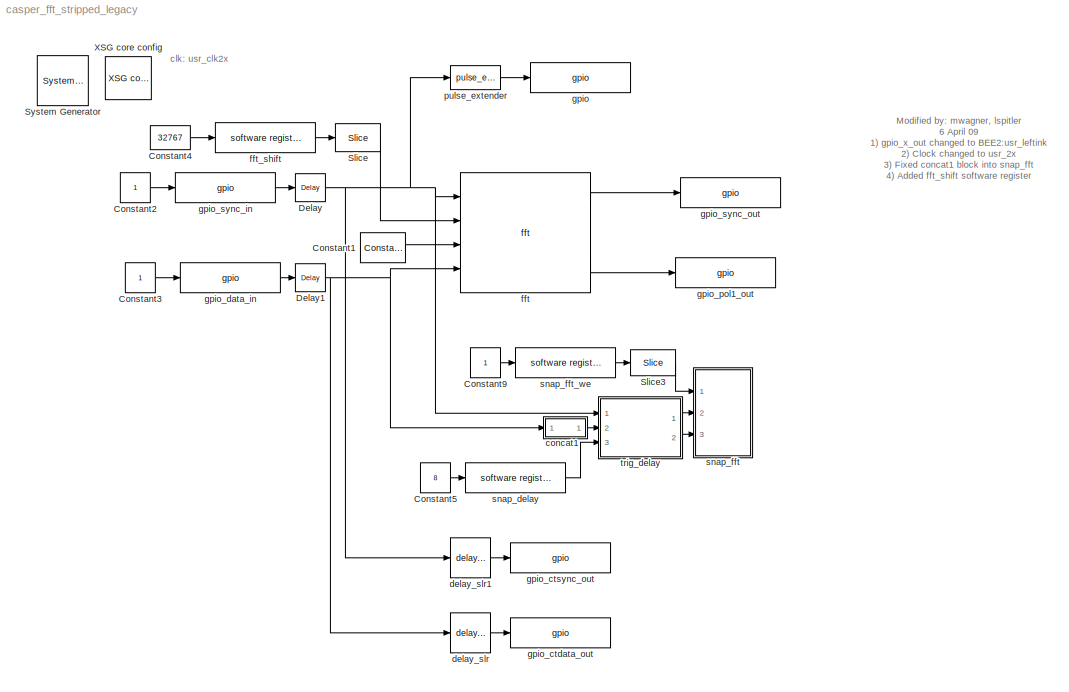
MODEL casper_fft_stripped_legacy
KIND model
BLOCK [Reference]  System Generator  REF=xbsIndex_r3/ System Generator
  AttributesFormatString = System\\nGenerator
  Ports = []
  ShowPortLabels = on
  SourceBlock = xbsIndex_r3/ System Generator
  SourceType = Xilinx System Generator
  Tag = genX
  UserData = DataTag0
  UserDataPersistent = on
  core_generation = According to Block Masks
  dbl_ovrd = According to Block Masks
  deprecated_control = off
  directory = ./casper_fft_stripped_legacy/sysgen
  eval_field = 0
  incr_netlist = off
  package = ff1704
  part = xc2vp70
  run_coregen = off
  simulink_period = 1
  speed = -7
  synthesis_tool = XST
  sysclk_period = 4.878
  testbench = off
  trim_vbits = Everywhere in SubSystem
  xilinxfamily = Virtex2P
BLOCK [Reference] Constant1  REF=xbsIndex_r3/Constant
  Ports = [0, 1]
  SourceBlock = xbsIndex_r3/Constant
  SourceType = Xilinx Constant Block
  arith_type = Unsigned
  bin_pt = 0
  carry = CIN
  const = 0
  dbl_ovrd = off
  equ = P=C
  explicit_period = on
  inp1 = P
  inp2 = PCIN>>17
  iostate = 0
  n_bits = 36
  opr = +
  opselect = C
  period = 1
BLOCK [Constant] Constant2
BLOCK [Constant] Constant3
BLOCK [Constant] Constant4
  Value = 32767
BLOCK [Constant] Constant5
  Value = 8
BLOCK [Constant] Constant9
BLOCK [Reference] Delay  REF=xbsIndex_r3/Delay
  Ports = [1, 1]
  SourceBlock = xbsIndex_r3/Delay
  SourceType = Xilinx Delay Block
  accept_only_valid = off
  dbl_ovrd = off
  en = off
  explicit_period = off
  init_zero = on
  latency = 1
  period = 1
  reg_retiming = on
  show_param = off
  xl_area = [0, 0, 0, 0, 0, 0, 0]
  xl_use_area = off
BLOCK [Reference] Delay1  REF=xbsIndex_r3/Delay
  Ports = [1, 1]
  SourceBlock = xbsIndex_r3/Delay
  SourceType = Xilinx Delay Block
  accept_only_valid = off
  dbl_ovrd = off
  en = off
  explicit_period = off
  init_zero = on
  latency = 1
  period = 1
  reg_retiming = on
  show_param = off
  xl_area = [0, 0, 0, 0, 0, 0, 0]
  xl_use_area = off
BLOCK [Reference] Slice  REF=xbsIndex_r3/Slice
  Ports = [1, 1]
  SourceBlock = xbsIndex_r3/Slice
  SourceType = Xilinx Slice Block
  base0 = LSB of Input
  base1 = MSB of Input
  bit0 = 0
  bit1 = 0
  boolean_output = off
  dbl_ovrd = off
  explicit_period = off
  mode = Lower Bit Location + Width
  nbits = 15
  period = 1
BLOCK [Reference] Slice3  REF=xbsIndex_r3/Slice
  Ports = [1, 1]
  SourceBlock = xbsIndex_r3/Slice
  SourceType = Xilinx Slice Block
  base0 = LSB of Input
  base1 = MSB of Input
  bit0 = 0
  bit1 = 0
  boolean_output = on
  dbl_ovrd = off
  explicit_period = on
  mode = Lower Bit Location + Width
  nbits = 1
  period = 1
BLOCK [Reference] XSG core config  REF=xps_library/XSG core config  (lib defined in mdl_00b5cec29cd0, mdl_02ab6ecaa3d1, +5 more)
  Ports = []
  ShowPortLabels = on
  SourceBlock = xps_library/XSG core config
  SourceType = xsg core config
  Tag = xps:xsg
  clk_rate = 205
  clk_src = usr_clk2x
  gpio_clk_bit_index = 0
  gpio_clk_io_group = iBOB:sma
  hw_sys = BEE2_usr
  ibob_linux = off
  mpc_type = powerpc405
  sample_period = 1
  synthesis_tool = XST
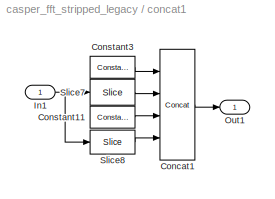
BLOCK [SubSystem] concat1
  MinAlgLoopOccurrences = off
  Ports = [1, 1]
  RTWSystemCode = Auto
  TreatAsAtomicUnit = off
BLOCK [Reference] concat1/Concat1  REF=xbsIndex_r3/Concat
  Ports = [4, 1]
  SourceBlock = xbsIndex_r3/Concat
  SourceType = Xilinx Bus Concatenator
  dbl_ovrd = off
  explicit_period = on
  num_inputs = 4
  period = 1
BLOCK [Reference] concat1/Constant11  REF=xbsIndex_r3/Constant
  Ports = [0, 1]
  SourceBlock = xbsIndex_r3/Constant
  SourceType = Xilinx Constant Block
  arith_type = Unsigned
  bin_pt = 0
  carry = CIN
  const = 0
  dbl_ovrd = off
  equ = P=C
  explicit_period = on
  inp1 = P
  inp2 = PCIN>>17
  iostate = 0
  n_bits = 14
  opr = +
  opselect = C
  period = 1
BLOCK [Reference] concat1/Constant3  REF=xbsIndex_r3/Constant
  Ports = [0, 1]
  SourceBlock = xbsIndex_r3/Constant
  SourceType = Xilinx Constant Block
  arith_type = Unsigned
  bin_pt = 0
  carry = CIN
  const = 0
  dbl_ovrd = off
  equ = P=C
  explicit_period = on
  inp1 = P
  inp2 = PCIN>>17
  iostate = 0
  n_bits = 14
  opr = +
  opselect = C
  period = 1
BLOCK [Inport] concat1/In1
  IconDisplay = Port number
  LatchInput = off
  Port = 1
BLOCK [Outport] concat1/Out1
  BusOutputAsStruct = off
  IconDisplay = Port number
BLOCK [Reference] concat1/Slice7  REF=xbsIndex_r3/Slice
  Ports = [1, 1]
  SourceBlock = xbsIndex_r3/Slice
  SourceType = Xilinx Slice Block
  base0 = LSB of Input
  base1 = MSB of Input
  bit0 = 0
  bit1 = 0
  boolean_output = off
  dbl_ovrd = off
  explicit_period = on
  mode = Upper Bit Location + Width
  nbits = 18
  period = 1
BLOCK [Reference] concat1/Slice8  REF=xbsIndex_r3/Slice
  Ports = [1, 1]
  SourceBlock = xbsIndex_r3/Slice
  SourceType = Xilinx Slice Block
  base0 = LSB of Input
  base1 = MSB of Input
  bit0 = 0
  bit1 = 0
  boolean_output = off
  dbl_ovrd = off
  explicit_period = on
  mode = Lower Bit Location + Width
  nbits = 18
  period = 1
BLOCK [Reference] delay_slr  REF=delay_lib/delay_slr  (lib defined in mdl_032c7a696b9b)
  DelayLen = 32
  Ports = [1, 1]
  ShowPortLabels = on
  SourceBlock = delay_lib/delay_slr
BLOCK [Reference] delay_slr1  REF=delay_lib/delay_slr  (lib defined in mdl_032c7a696b9b)
  DelayLen = 32
  Ports = [1, 1]
  ShowPortLabels = on
  SourceBlock = delay_lib/delay_slr
BLOCK [Reference] fft  REF=fft_library/fft  (lib defined in mdl_1e4ee9a0e578, mdl_700654ea79ba)
  BitWidth = 18
  FFTSize = 15
  Ports = [4, 3]
  ShowPortLabels = on
  SourceBlock = fft_library/fft
  add_latency = 1
  bram_latency = 2
  mult_latency = 3
  n_inputs = 0
  overflow = Wrap
  quantization = Truncate
BLOCK [Reference] fft_shift  REF=xps_library/software register  (lib defined in mdl_00b5cec29cd0, mdl_02ab6ecaa3d1, +5 more)
  Ports = [1, 1]
  ShowPortLabels = on
  SourceBlock = xps_library/software register
  Tag = xps:sw_reg
  arith_type = Unsigned
  bin_pt = 0
  bitwidth = 32
  gw_name = casper_fft_stripped_legacy_fft_shift_user_data_out
  io_dir = From Processor
  sample_period = 1
BLOCK [Reference] gpio  REF=xps_library/gpio  (lib defined in mdl_00b5cec29cd0, mdl_02ab6ecaa3d1, +5 more)
  Ports = [1, 1]
  ShowPortLabels = on
  SourceBlock = xps_library/gpio
  SourceType = gpio
  Tag = xps:gpio
  arith_type = Boolean
  bin_pt = 0
  bit_index = 0
  bitwidth = 1
  io_dir = out
  io_group = BEE2_usr:led
  reg_clk_phase = 0
  reg_iob = on
  sample_period = 1
  termination = None
  use_ddr = off
  use_single_ended = off
BLOCK [Reference] gpio_ctdata_out  REF=xps_library/gpio  (lib defined in mdl_00b5cec29cd0, mdl_02ab6ecaa3d1, +5 more)
  Ports = [1, 1]
  ShowPortLabels = on
  SourceBlock = xps_library/gpio
  SourceType = gpio
  Tag = xps:gpio
  arith_type = Unsigned
  bin_pt = 0
  bit_index = [0:35]
  bitwidth = 36
  io_dir = out
  io_group = BEE2_usr:leftlink
  reg_clk_phase = 0
  reg_iob = on
  sample_period = 1
  termination = None
  use_ddr = off
  use_single_ended = off
BLOCK [Reference] gpio_ctsync_out  REF=xps_library/gpio  (lib defined in mdl_00b5cec29cd0, mdl_02ab6ecaa3d1, +5 more)
  Ports = [1, 1]
  ShowPortLabels = on
  SourceBlock = xps_library/gpio
  SourceType = gpio
  Tag = xps:gpio
  arith_type = Boolean
  bin_pt = 0
  bit_index = 36
  bitwidth = 1
  io_dir = out
  io_group = BEE2_usr:leftlink
  reg_clk_phase = 0
  reg_iob = on
  sample_period = 1
  termination = None
  use_ddr = off
  use_single_ended = off
BLOCK [Reference] gpio_data_in  REF=xps_library/gpio  (lib defined in mdl_00b5cec29cd0, mdl_02ab6ecaa3d1, +5 more)
  Ports = [1, 1]
  ShowPortLabels = on
  SourceBlock = xps_library/gpio
  SourceType = gpio
  Tag = xps:gpio
  arith_type = Unsigned
  bin_pt = 0
  bit_index = [0:35]
  bitwidth = 36
  io_dir = in
  io_group = BEE2_usr:rightlink
  reg_clk_phase = 180
  reg_iob = on
  sample_period = 1
  termination = None
  use_ddr = off
  use_single_ended = off
BLOCK [Reference] gpio_pol1_out  REF=xps_library/gpio  (lib defined in mdl_00b5cec29cd0, mdl_02ab6ecaa3d1, +5 more)
  Ports = [1, 1]
  ShowPortLabels = on
  SourceBlock = xps_library/gpio
  SourceType = gpio
  Tag = xps:gpio
  arith_type = Unsigned
  bin_pt = 0
  bit_index = [37:72]
  bitwidth = 36
  io_dir = out
  io_group = BEE2_usr:leftlink
  reg_clk_phase = 0
  reg_iob = on
  sample_period = 1
  termination = None
  use_ddr = off
  use_single_ended = off
BLOCK [Reference] gpio_sync_in  REF=xps_library/gpio  (lib defined in mdl_00b5cec29cd0, mdl_02ab6ecaa3d1, +5 more)
  Ports = [1, 1]
  ShowPortLabels = on
  SourceBlock = xps_library/gpio
  SourceType = gpio
  Tag = xps:gpio
  arith_type = Boolean
  bin_pt = 0
  bit_index = 36
  bitwidth = 1
  io_dir = in
  io_group = BEE2_usr:rightlink
  reg_clk_phase = 180
  reg_iob = on
  sample_period = 1
  termination = None
  use_ddr = off
  use_single_ended = off
BLOCK [Reference] gpio_sync_out  REF=xps_library/gpio  (lib defined in mdl_00b5cec29cd0, mdl_02ab6ecaa3d1, +5 more)
  Ports = [1, 1]
  ShowPortLabels = on
  SourceBlock = xps_library/gpio
  SourceType = gpio
  Tag = xps:gpio
  arith_type = Boolean
  bin_pt = 0
  bit_index = 73
  bitwidth = 1
  io_dir = out
  io_group = BEE2_usr:leftlink
  reg_clk_phase = 0
  reg_iob = on
  sample_period = 1
  termination = None
  use_ddr = off
  use_single_ended = off
BLOCK [Reference] pulse_extender  REF=adcscope_lib/pulse_extender  (lib defined in mdl_e6e7a0921e57)
  Ports = [1, 1]
  ShowPortLabels = on
  SourceBlock = adcscope_lib/pulse_extender
  pulse_len = 2^25
BLOCK [Reference] snap_delay  REF=xps_library/software register  (lib defined in mdl_00b5cec29cd0, mdl_02ab6ecaa3d1, +5 more)
  Ports = [1, 1]
  ShowPortLabels = on
  SourceBlock = xps_library/software register
  Tag = xps:sw_reg
  arith_type = Unsigned
  bin_pt = 0
  bitwidth = 32
  gw_name = casper_fft_stripped_legacy_snap_delay_user_data_out
  io_dir = From Processor
  sample_period = 1
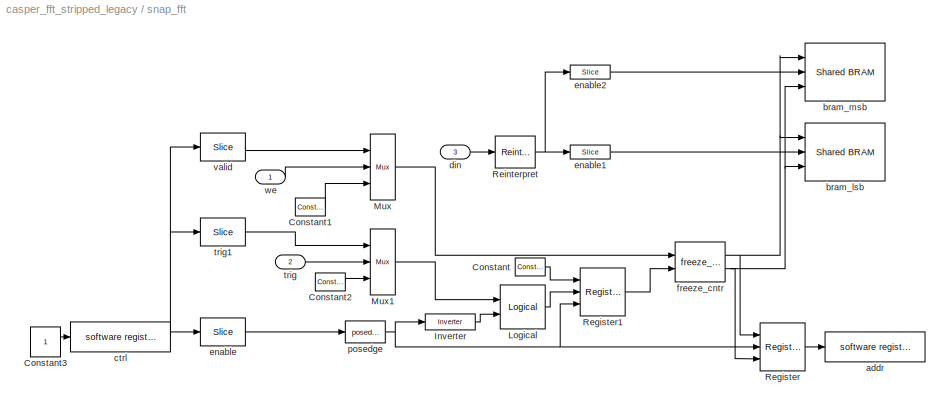
BLOCK [SubSystem] snap_fft
  MaskEnableString = on
  MaskIconFrame = on
  MaskIconOpaque = on
  MaskIconRotate = none
  MaskIconUnits = autoscale
  MaskPromptString = number of samples (2^?)
  MaskStyleString = edit
  MaskToolTipString = on
  MaskTunableValueString = on
  MaskValueString = 12
  MaskVariables = nsamples=@1;
  MaskVisibilityString = on
  MinAlgLoopOccurrences = off
  Ports = [3]
  RTWSystemCode = Auto
  TreatAsAtomicUnit = off
BLOCK [Reference] snap_fft/Constant  REF=xbsIndex_r3/Constant
  Ports = [0, 1]
  SourceBlock = xbsIndex_r3/Constant
  SourceType = Xilinx Constant Block
  arith_type = Boolean
  bin_pt = 0
  carry = CIN
  const = 1
  dbl_ovrd = off
  equ = P=C
  explicit_period = on
  inp1 = P
  inp2 = PCIN>>17
  iostate = 0
  n_bits = 1
  opr = +
  opselect = C
  period = 1
BLOCK [Reference] snap_fft/Constant1  REF=xbsIndex_r3/Constant
  Ports = [0, 1]
  SourceBlock = xbsIndex_r3/Constant
  SourceType = Xilinx Constant Block
  arith_type = Boolean
  bin_pt = 0
  carry = CIN
  const = 1
  dbl_ovrd = off
  equ = P=C
  explicit_period = on
  inp1 = P
  inp2 = PCIN>>17
  iostate = 0
  n_bits = 1
  opr = +
  opselect = C
  period = 1
BLOCK [Reference] snap_fft/Constant2  REF=xbsIndex_r3/Constant
  Ports = [0, 1]
  SourceBlock = xbsIndex_r3/Constant
  SourceType = Xilinx Constant Block
  arith_type = Boolean
  bin_pt = 0
  carry = CIN
  const = 1
  dbl_ovrd = off
  equ = P=C
  explicit_period = on
  inp1 = P
  inp2 = PCIN>>17
  iostate = 0
  n_bits = 1
  opr = +
  opselect = C
  period = 1
BLOCK [Constant] snap_fft/Constant3
BLOCK [Reference] snap_fft/Inverter  REF=xbsIndex_r3/Inverter
  Ports = [1, 1]
  SourceBlock = xbsIndex_r3/Inverter
  SourceType = Xilinx Inverter
  dbl_ovrd = off
  en = off
  explicit_period = on
  latency = 0
  period = 1
  show_param = off
  xl_area = [0, 0, 0, 0, 0, 0, 0]
  xl_use_area = off
BLOCK [Reference] snap_fft/Logical  REF=xbsIndex_r3/Logical
  Ports = [2, 1]
  SourceBlock = xbsIndex_r3/Logical
  SourceType = Xilinx Logical Block
  align_bp = on
  arith_type = Unsigned
  bin_pt = 2
  dbl_ovrd = off
  en = off
  explicit_period = off
  inputs = 2
  latency = 0
  logical_function = AND
  n_bits = 8
  period = 1
  precision = Full
  show_param = off
  xl_area = [0, 0, 0, 0, 0, 0, 0]
  xl_use_area = off
BLOCK [Reference] snap_fft/Mux  REF=xbsIndex_r3/Mux
  Ports = [3, 1]
  SourceBlock = xbsIndex_r3/Mux
  SourceType = Xilinx Multiplexer Block
  arith_type = Signed  (2's comp)
  bin_pt = 2
  dbl_ovrd = off
  en = off
  explicit_period = on
  gen_core = off
  inputs = 2
  latency = 0
  mux_type = off
  n_bits = 8
  overflow = Wrap
  period = 1
  precision = Full
  quantization = Truncate
  show_param = off
  use_rpm = off
  xl_area = [0, 0, 0, 0, 0, 0, 0]
  xl_use_area = off
BLOCK [Reference] snap_fft/Mux1  REF=xbsIndex_r3/Mux
  Ports = [3, 1]
  SourceBlock = xbsIndex_r3/Mux
  SourceType = Xilinx Multiplexer Block
  arith_type = Signed  (2's comp)
  bin_pt = 2
  dbl_ovrd = off
  en = off
  explicit_period = on
  gen_core = off
  inputs = 2
  latency = 0
  mux_type = off
  n_bits = 8
  overflow = Wrap
  period = 1
  precision = Full
  quantization = Truncate
  show_param = off
  use_rpm = off
  xl_area = [0, 0, 0, 0, 0, 0, 0]
  xl_use_area = off
BLOCK [Reference] snap_fft/Register  REF=xbsIndex_r3/Register
  Ports = [3, 1]
  SourceBlock = xbsIndex_r3/Register
  SourceType = Xilinx Register Block
  dbl_ovrd = off
  en = on
  explicit_period = on
  init = 0
  out_en = off
  period = 1
  reg_only_valid = off
  rst = on
  show_param = off
  xl_area = [0, 0, 0, 0, 0, 0, 0]
  xl_use_area = off
BLOCK [Reference] snap_fft/Register1  REF=xbsIndex_r3/Register
  Ports = [3, 1]
  SourceBlock = xbsIndex_r3/Register
  SourceType = Xilinx Register Block
  dbl_ovrd = off
  en = on
  explicit_period = on
  init = 0
  out_en = off
  period = 1
  reg_only_valid = off
  rst = on
  show_param = off
  xl_area = [0, 0, 0, 0, 0, 0, 0]
  xl_use_area = off
BLOCK [Reference] snap_fft/Reinterpret  REF=xbsIndex_r3/Reinterpret
  Ports = [1, 1]
  SourceBlock = xbsIndex_r3/Reinterpret
  SourceType = Xilinx Type Reinterpreting Block
  arith_type = Unsigned
  bin_pt = 0
  force_arith_type = on
  force_bin_pt = on
  force_valid = on
BLOCK [Reference] snap_fft/addr  REF=xps_library/software register  (lib defined in mdl_00b5cec29cd0, mdl_02ab6ecaa3d1, +5 more)
  Ports = [1, 1]
  ShowPortLabels = on
  SourceBlock = xps_library/software register
  Tag = xps:sw_reg
  arith_type = Unsigned
  bin_pt = 0
  bitwidth = 32
  gw_name = casper_fft_stripped_legacy_snap_fft_addr_user_data_in
  io_dir = To Processor
  sample_period = 1
BLOCK [Reference] snap_fft/bram_lsb  REF=xps_library/Shared BRAM  (lib defined in mdl_00b5cec29cd0, mdl_02ab6ecaa3d1, +5 more)
  Ports = [3, 1]
  ShowPortLabels = on
  SourceBlock = xps_library/Shared BRAM
  Tag = xps:bram
  addr_width = nsamples
  arith_type = Unsigned
  data_bin_pt = 0
  data_width = 32
  init_vals = 0
  sample_rate = 1
BLOCK [Reference] snap_fft/bram_msb  REF=xps_library/Shared BRAM  (lib defined in mdl_00b5cec29cd0, mdl_02ab6ecaa3d1, +5 more)
  Ports = [3, 1]
  ShowPortLabels = on
  SourceBlock = xps_library/Shared BRAM
  Tag = xps:bram
  addr_width = nsamples
  arith_type = Unsigned
  data_bin_pt = 0
  data_width = 32
  init_vals = 0
  sample_rate = 1
BLOCK [Reference] snap_fft/ctrl  REF=xps_library/software register  (lib defined in mdl_00b5cec29cd0, mdl_02ab6ecaa3d1, +5 more)
  Ports = [1, 1]
  ShowPortLabels = on
  SourceBlock = xps_library/software register
  Tag = xps:sw_reg
  arith_type = Unsigned
  bin_pt = 0
  bitwidth = 32
  gw_name = casper_fft_stripped_legacy_snap_fft_ctrl_user_data_out
  io_dir = From Processor
  sample_period = 1
BLOCK [Inport] snap_fft/din
  IconDisplay = Port number
  LatchInput = off
  Port = 3
BLOCK [Reference] snap_fft/enable  REF=xbsIndex_r3/Slice
  Ports = [1, 1]
  SourceBlock = xbsIndex_r3/Slice
  SourceType = Xilinx Slice Block
  base0 = LSB of Input
  base1 = MSB of Input
  bit0 = 0
  bit1 = 0
  boolean_output = on
  dbl_ovrd = off
  explicit_period = on
  mode = Lower Bit Location + Width
  nbits = 1
  period = 1
BLOCK [Reference] snap_fft/enable1  REF=xbsIndex_r3/Slice
  Ports = [1, 1]
  SourceBlock = xbsIndex_r3/Slice
  SourceType = Xilinx Slice Block
  base0 = LSB of Input
  base1 = MSB of Input
  bit0 = 0
  bit1 = 0
  boolean_output = off
  dbl_ovrd = off
  explicit_period = on
  mode = Lower Bit Location + Width
  nbits = 32
  period = 1
BLOCK [Reference] snap_fft/enable2  REF=xbsIndex_r3/Slice
  Ports = [1, 1]
  SourceBlock = xbsIndex_r3/Slice
  SourceType = Xilinx Slice Block
  base0 = LSB of Input
  base1 = MSB of Input
  bit0 = 32
  bit1 = 0
  boolean_output = off
  dbl_ovrd = off
  explicit_period = on
  mode = Lower Bit Location + Width
  nbits = 32
  period = 1
BLOCK [Reference] snap_fft/freeze_cntr  REF=correlator_library/freeze_cntr  (lib defined in mdl_61a1cd724cd8)
  CounterBits = nsamples
  Ports = [2, 2]
  ShowPortLabels = on
  SourceBlock = correlator_library/freeze_cntr
BLOCK [Reference] snap_fft/posedge  REF=adcscope_lib/posedge  (lib defined in mdl_e6e7a0921e57)
  Ports = [1, 1]
  ShowPortLabels = on
  SourceBlock = adcscope_lib/posedge
  Tag = Rising Edge Detector
  yummy = on
BLOCK [Inport] snap_fft/trig
  IconDisplay = Port number
  LatchInput = off
  Port = 2
BLOCK [Reference] snap_fft/trig1  REF=xbsIndex_r3/Slice
  Ports = [1, 1]
  SourceBlock = xbsIndex_r3/Slice
  SourceType = Xilinx Slice Block
  base0 = LSB of Input
  base1 = MSB of Input
  bit0 = 1
  bit1 = 1
  boolean_output = on
  dbl_ovrd = off
  explicit_period = on
  mode = Lower Bit Location + Width
  nbits = 1
  period = 1
BLOCK [Reference] snap_fft/valid  REF=xbsIndex_r3/Slice
  Ports = [1, 1]
  SourceBlock = xbsIndex_r3/Slice
  SourceType = Xilinx Slice Block
  base0 = LSB of Input
  base1 = MSB of Input
  bit0 = 2
  bit1 = 0
  boolean_output = on
  dbl_ovrd = off
  explicit_period = on
  mode = Lower Bit Location + Width
  nbits = 1
  period = 1
BLOCK [Inport] snap_fft/we
  IconDisplay = Port number
  LatchInput = off
  Port = 1
BLOCK [Reference] snap_fft_we  REF=xps_library/software register  (lib defined in mdl_00b5cec29cd0, mdl_02ab6ecaa3d1, +5 more)
  Ports = [1, 1]
  ShowPortLabels = on
  SourceBlock = xps_library/software register
  Tag = xps:sw_reg
  arith_type = Unsigned
  bin_pt = 0
  bitwidth = 32
  gw_name = casper_fft_stripped_legacy_snap_fft_we_user_data_out
  io_dir = From Processor
  sample_period = 1
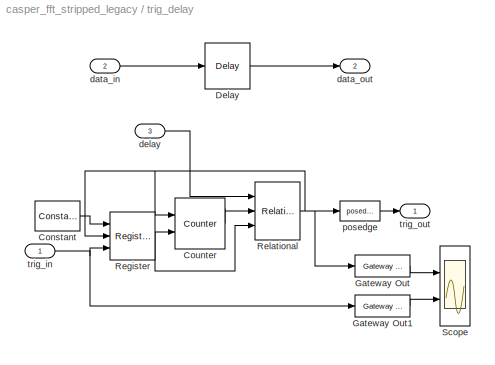
BLOCK [SubSystem] trig_delay
  MinAlgLoopOccurrences = off
  Ports = [3, 2]
  RTWSystemCode = Auto
  TreatAsAtomicUnit = off
BLOCK [Reference] trig_delay/Constant  REF=xbsIndex_r3/Constant
  Ports = [0, 1]
  SourceBlock = xbsIndex_r3/Constant
  SourceType = Xilinx Constant Block
  arith_type = Boolean
  bin_pt = 0
  carry = CIN
  const = 1
  dbl_ovrd = off
  equ = P=C
  explicit_period = on
  inp1 = P
  inp2 = PCIN>>17
  iostate = 0
  n_bits = 32
  opr = +
  opselect = C
  period = 1
BLOCK [Reference] trig_delay/Counter  REF=xbsIndex_r3/Counter
  Ports = [2, 1]
  SourceBlock = xbsIndex_r3/Counter
  SourceType = Xilinx Counter Block
  arith_type = Unsigned
  bin_pt = 0
  cnt_by_val = 1
  cnt_to = Inf
  cnt_type = Free Running
  dbl_ovrd = off
  en = on
  explicit_period = on
  gen_core = off
  load_pin = off
  n_bits = 32
  operation = Up
  period = 1
  rst = on
  show_param = off
  start_count = 0
  use_rpm = on
  xl_area = [0, 0, 0, 0, 0, 0, 0]
  xl_use_area = off
BLOCK [Reference] trig_delay/Delay  REF=xbsIndex_r3/Delay
  Ports = [1, 1]
  SourceBlock = xbsIndex_r3/Delay
  SourceType = Xilinx Delay Block
  accept_only_valid = off
  dbl_ovrd = off
  en = off
  explicit_period = on
  init_zero = on
  latency = 2
  period = 1
  reg_retiming = off
  show_param = off
  xl_area = [0, 0, 0, 0, 0, 0, 0]
  xl_use_area = off
BLOCK [Reference] trig_delay/Gateway Out  REF=xbsIndex_r3/Gateway Out
  LOCs = {}
  Ports = [1, 1]
  SourceBlock = xbsIndex_r3/Gateway Out
  SourceType = Xilinx Gateway Out
  arith_type = Boolean
  bin_pt = 6
  hdl_port = on
  locs_specified = off
  nbits = 8
  needs_fixed_name = off
  output_type = Double
  overflow = Wrap
  quantization = Truncate
  show_param = off
  timing_constraint = None
  xl_area = [0, 0, 0, 0, 0, 0, 0]
  xl_use_area = off
BLOCK [Reference] trig_delay/Gateway Out1  REF=xbsIndex_r3/Gateway Out
  LOCs = {}
  Ports = [1, 1]
  SourceBlock = xbsIndex_r3/Gateway Out
  SourceType = Xilinx Gateway Out
  arith_type = Boolean
  bin_pt = 6
  hdl_port = on
  locs_specified = off
  nbits = 8
  needs_fixed_name = off
  output_type = Double
  overflow = Wrap
  quantization = Truncate
  show_param = off
  timing_constraint = None
  xl_area = [0, 0, 0, 0, 0, 0, 0]
  xl_use_area = off
BLOCK [Reference] trig_delay/Register  REF=xbsIndex_r3/Register
  Ports = [3, 1]
  SourceBlock = xbsIndex_r3/Register
  SourceType = Xilinx Register Block
  dbl_ovrd = off
  en = on
  explicit_period = on
  init = 0
  out_en = off
  period = 1
  reg_only_valid = off
  rst = on
  show_param = off
  xl_area = [0, 0, 0, 0, 0, 0, 0]
  xl_use_area = off
BLOCK [Reference] trig_delay/Relational  REF=xbsIndex_r3/Relational
  Ports = [3, 1]
  SourceBlock = xbsIndex_r3/Relational
  SourceType = Xilinx Relational Block
  dbl_ovrd = off
  en = on
  explicit_period = on
  latency = 1
  mode = a=b
  period = 1
  show_param = off
  xl_area = [0, 0, 0, 0, 0, 0, 0]
  xl_use_area = off
BLOCK [Scope] trig_delay/Scope
  DataFormat = StructureWithTime
  NumInputPorts = 2
  Ports = [2]
  YMax = 5~5
  YMin = -5~-5
  ZoomMode = xonly
BLOCK [Inport] trig_delay/data_in
  IconDisplay = Port number
  LatchInput = off
  Port = 2
BLOCK [Outport] trig_delay/data_out
  BusOutputAsStruct = off
  IconDisplay = Port number
  Port = 2
BLOCK [Inport] trig_delay/delay
  IconDisplay = Port number
  LatchInput = off
  Port = 3
BLOCK [Reference] trig_delay/posedge  REF=adcscope_lib/posedge  (lib defined in mdl_e6e7a0921e57)
  Ports = [1, 1]
  ShowPortLabels = on
  SourceBlock = adcscope_lib/posedge
  Tag = Rising Edge Detector
  yummy = on
BLOCK [Inport] trig_delay/trig_in
  IconDisplay = Port number
  LatchInput = off
  Port = 1
BLOCK [Outport] trig_delay/trig_out
  BusOutputAsStruct = off
  IconDisplay = Port number
ANNOTATION (root): Modified by: mwagner, lspitler\n6 April 09\n1) gpio_x_out changed to BEE2:usr_leftink\n2) Clock changed to usr_2x\n3) Fixed concat1 block into snap_fft\n4) Added fft_shift software register\n5) Put pass through links back in\n6) Added SNAP trigger delay\nNote split in model: casper_fft_xaui.mdl\n7) Changed input gpio phases from 0 -> 180 \n(ala Glenn)
ANNOTATION (root): clk: usr_clk2x
LINE Constant1:1 -> fft:3
LINE Constant2:1 -> gpio_sync_in:1
LINE Constant3:1 -> gpio_data_in:1
LINE Constant4:1 -> fft_shift:1
LINE Constant5:1 -> snap_delay:1
LINE Constant9:1 -> snap_fft_we:1
NET Delay1:1 -> concat1:1, delay_slr:1, fft:4
NET Delay:1 -> delay_slr1:1, fft:1, pulse_extender:1, trig_delay:1
LINE Slice3:1 -> snap_fft:1
LINE Slice:1 -> fft:2
LINE concat1/Concat1:1 -> concat1/Out1:1
LINE concat1/Constant11:1 -> concat1/Concat1:3
LINE concat1/Constant3:1 -> concat1/Concat1:1
NET concat1/In1:1 -> concat1/Slice7:1, concat1/Slice8:1
LINE concat1/Slice7:1 -> concat1/Concat1:2
LINE concat1/Slice8:1 -> concat1/Concat1:4
LINE concat1:1 -> trig_delay:2
LINE delay_slr1:1 -> gpio_ctsync_out:1
LINE delay_slr:1 -> gpio_ctdata_out:1
LINE fft:1 -> gpio_sync_out:1
LINE fft:3 -> gpio_pol1_out:1
LINE fft_shift:1 -> Slice:1
LINE gpio_data_in:1 -> Delay1:1
LINE gpio_sync_in:1 -> Delay:1
LINE pulse_extender:1 -> gpio:1
LINE snap_delay:1 -> trig_delay:3
LINE snap_fft/Constant1:1 -> snap_fft/Mux:3
LINE snap_fft/Constant2:1 -> snap_fft/Mux1:3
LINE snap_fft/Constant3:1 -> snap_fft/ctrl:1
LINE snap_fft/Constant:1 -> snap_fft/Register1:1
LINE snap_fft/Inverter:1 -> snap_fft/Logical:2
LINE snap_fft/Logical:1 -> snap_fft/Register1:2
LINE snap_fft/Mux1:1 -> snap_fft/Logical:1
LINE snap_fft/Mux:1 -> snap_fft/freeze_cntr:1
LINE snap_fft/Register1:1 -> snap_fft/freeze_cntr:2
LINE snap_fft/Register:1 -> snap_fft/addr:1
NET snap_fft/Reinterpret:1 -> snap_fft/enable1:1, snap_fft/enable2:1
NET snap_fft/ctrl:1 -> snap_fft/enable:1, snap_fft/trig1:1, snap_fft/valid:1
LINE snap_fft/din:1 -> snap_fft/Reinterpret:1
LINE snap_fft/enable1:1 -> snap_fft/bram_lsb:2
LINE snap_fft/enable2:1 -> snap_fft/bram_msb:2
LINE snap_fft/enable:1 -> snap_fft/posedge:1
NET snap_fft/freeze_cntr:1 -> snap_fft/Register:1, snap_fft/bram_lsb:1, snap_fft/bram_msb:1
NET snap_fft/freeze_cntr:2 -> snap_fft/Register:3, snap_fft/bram_lsb:3, snap_fft/bram_msb:3
NET snap_fft/posedge:1 -> snap_fft/Inverter:1, snap_fft/Register1:3, snap_fft/Register:2
LINE snap_fft/trig1:1 -> snap_fft/Mux1:1
LINE snap_fft/trig:1 -> snap_fft/Mux1:2
LINE snap_fft/valid:1 -> snap_fft/Mux:1
LINE snap_fft/we:1 -> snap_fft/Mux:2
LINE snap_fft_we:1 -> Slice3:1
LINE trig_delay/Constant:1 -> trig_delay/Register:1
LINE trig_delay/Counter:1 -> trig_delay/Relational:2
LINE trig_delay/Delay:1 -> trig_delay/data_out:1
LINE trig_delay/Gateway Out1:1 -> trig_delay/Scope:2
LINE trig_delay/Gateway Out:1 -> trig_delay/Scope:1
NET trig_delay/Register:1 -> trig_delay/Counter:2, trig_delay/Relational:3
NET trig_delay/Relational:1 -> trig_delay/Counter:1, trig_delay/Gateway Out:1, trig_delay/Register:2, trig_delay/posedge:1
LINE trig_delay/data_in:1 -> trig_delay/Delay:1
LINE trig_delay/delay:1 -> trig_delay/Relational:1
LINE trig_delay/posedge:1 -> trig_delay/trig_out:1
NET trig_delay/trig_in:1 -> trig_delay/Gateway Out1:1, trig_delay/Register:3
LINE trig_delay:1 -> snap_fft:2
LINE trig_delay:2 -> snap_fft:3
note: NET lines group one-source signal fan-out (src -> all destinations, sorted); 1:1 wires keep LINE
